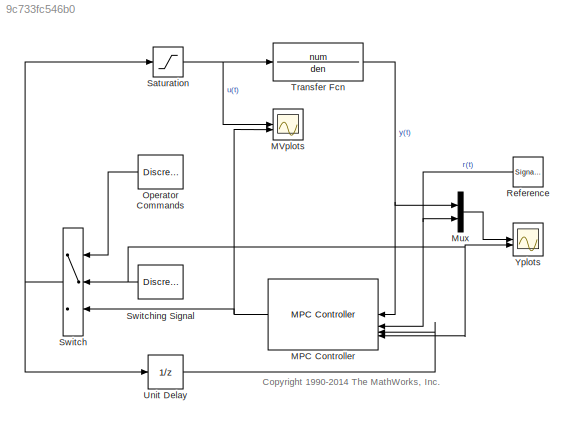
MODEL slx_9c733fc546b0
KIND model
CONFIG AbsTol = auto
CONFIG EnableMultiTasking = off
CONFIG FixedStep = auto
CONFIG MaxStep = auto
CONFIG MinStep = auto
CONFIG RelTol = 1e-3
CONFIG SampleTimeConstraint = Unconstrained
CONFIG SolverName = ode3
CONFIG StartTime = 0.0
CONFIG StopTime = 250
BLOCK [Reference] MPC Controller  REF=mpclib/MPC Controller  (lib defined in mdl_ae329e0e0455)
  SourceBlock = mpclib/MPC Controller
  SourceType = MPC
BLOCK [Scope] MVplots
  Floating = off
  NumInputPorts = 2
  ScopeSpecificationString = Simulink.scopes.TimeScopeBlockCfg('CurrentConfiguration', extmgr.ConfigurationSet(extmgr.Configuration('Core','General UI',true,'FigureColor',[0.156862745098039 0.156862745098039 0.156862745098039]),extmgr.Configuration('Core','Source UI',true),extmgr.Configuration('Sources','WiredSimulink',true,'DataLoggingVariableName','ScopeData2','DataLoggingSaveFormat','Structure','DataLoggingLimitDataPoints'...<+4100ch>
BLOCK [Mux] Mux
  DisplayOption = bar
  Inputs = 2
BLOCK [DiscretePulseGenerator] Operator Commands
  Amplitude = -0.5
  Period = 180
  PhaseDelay = 10
  PulseType = Time based
  PulseWidth = 50
BLOCK [SignalGenerator] Reference
  Amplitude = 0.5
  Frequency = .0045
  WaveForm = square
BLOCK [Saturate] Saturation
  LowerLimit = -1
  UpperLimit = 1
BLOCK [Switch] Switch
  InputSameDT = off
  SaturateOnIntegerOverflow = off
  Threshold = 0.5
BLOCK [DiscretePulseGenerator] Switching Signal
  Period = 180
  PhaseDelay = 90
  PulseType = Time based
  PulseWidth = 50
BLOCK [TransferFcn] Transfer Fcn
  Denominator = den
  Numerator = num
BLOCK [UnitDelay] Unit Delay
  HasFrameUpgradeWarning = on
  SampleTime = -1
BLOCK [Scope] Yplots
  Floating = off
  NumInputPorts = 2
  ScopeSpecificationString = Simulink.scopes.TimeScopeBlockCfg('CurrentConfiguration', extmgr.ConfigurationSet(extmgr.Configuration('Core','General UI',true,'FigureColor',[0.156862745098039 0.156862745098039 0.156862745098039]),extmgr.Configuration('Core','Source UI',true),extmgr.Configuration('Sources','WiredSimulink',true,'DataLoggingVariableName','ScopeData3','DataLoggingSaveFormat','StructureWithTime','DataLoggingDecimati...<+4094ch>
ANNOTATION (root): <copyright redacted>
NET MPC Controller:1 -> MVplots:2, Switch:3
LINE Mux:1 -> Yplots:1
LINE Operator Commands:1 -> Switch:1
NET Reference:1 -> MPC Controller:2, Mux:2
NET Saturation:1 -> MVplots:1, Transfer Fcn:1
NET Switch:1 -> Saturation:1, Unit Delay:1
NET Switching Signal:1 -> MPC Controller:4, Switch:2, Yplots:2
NET Transfer Fcn:1 -> MPC Controller:1, Mux:1
LINE Unit Delay:1 -> MPC Controller:3
note: NET lines group one-source signal fan-out (src -> all destinations, sorted); 1:1 wires keep LINE
